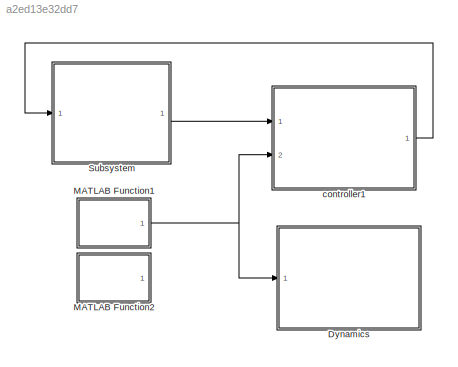
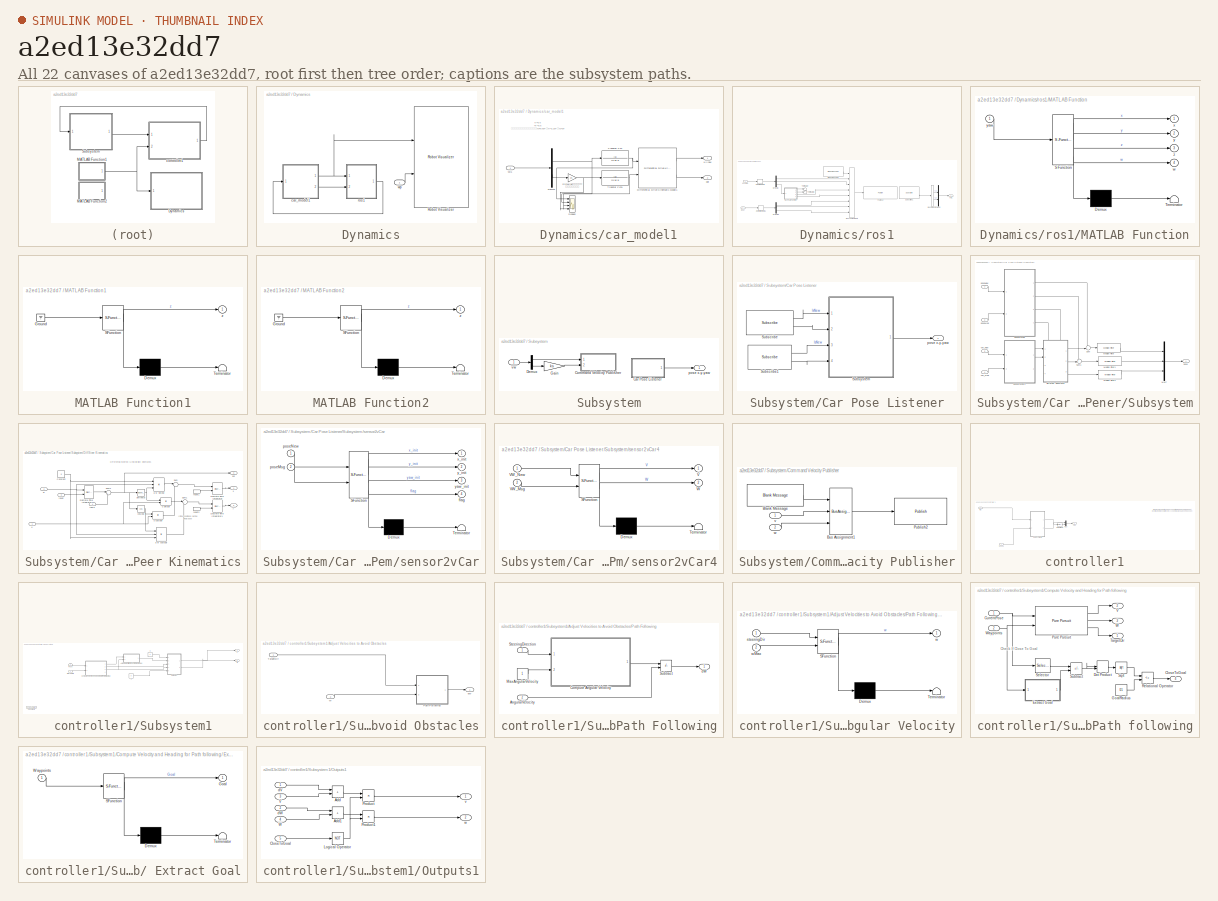
[diagram: thumbnail index - all 22 canvases of the model, root first then tree order]
MODEL slx_a2ed13e32dd7
KIND model
CONFIG AbsTol = auto
CONFIG EnableMultiTasking = on
CONFIG FixedStep = sampleTime
CONFIG InitFcn = sampleTime = 0.05;\nnMedianSize=3;\n% Robot parameters\nwheelRadius = 0.0303; \nrobotRadius = 0.06;   %小车在仿真中显示的圆形的半径大小\nTrackwidth = 0.0847;  %定义向量场直方图算法中小车的宽度\n\n% Lidar parameters\nsensorOffset = [0,0];\nscanAngles = linspace(-pi/3,pi/3,20)';%y = linspace(x1,x2,n) 生成 n 个点。这些点的间距为 (x2-x1)/(n-1)。\nmaxRange = 0.4;\n\n%%%%%%\nks=1;\n\n\n\n\n\nA=0.3;\nC=1.7;\nB=(A+C)/2;\n\nwp1=[A,A; B,A;  C,A; C,B;C,C; B,C; A,C;A,B];    \n...<+638ch>
CONFIG MaxStep = auto
CONFIG MinStep = auto
CONFIG RelTol = 1e-3
CONFIG SampleTimeConstraint = Unconstrained
CONFIG SolverName = VariableStepAuto
CONFIG StartTime = 0.0
CONFIG StopTime = Inf
BLOCK [SubSystem] Dynamics
  Ports = [1]
  RequestExecContextInheritance = off
BLOCK [Reference] Dynamics/Robot Visualizer  REF=mobileRoboticsLib/Environments/Robot Visualizer
  Ports = [2]
  Priority = 99
  SourceBlock = mobileRoboticsLib/Environments/Robot Visualizer
  SourceProductName = Mobile Robotics Simulation Toolbox
  SourceType = Visualizer2D
BLOCK [SubSystem] Dynamics/car_model1
  Ports = [1, 2]
  RequestExecContextInheritance = off
BLOCK [Demux] Dynamics/car_model1/Demux
  Outputs = 2
  Ports = [1, 2]
BLOCK [Reference] Dynamics/car_model1/Differential Drive Kinematic Model1  REF=robotmobilelib/Differential Drive Kinematic Model
  Ports = [2, 2]
  SourceBlock = robotmobilelib/Differential Drive Kinematic Model
  SourceProductBaseCode = RO
  SourceType = Differential Drive Kinematic Model
BLOCK [Scope] Dynamics/car_model1/Scope2
  Floating = off
  NumInputPorts = 4
  Ports = [4]
  ScopeSpecificationString = Simulink.scopes.TimeScopeBlockCfg('CurrentConfiguration', extmgr.ConfigurationSet(extmgr.Configuration('Core','General UI',true),extmgr.Configuration('Core','Source UI',true),extmgr.Configuration('Sources','WiredSimulink',true,'DataLoggingVariableName','ScopeData2'),extmgr.Configuration('Visuals','Time Domain',true,'SerializedDisplays',{struct('MinYLimReal','-1.62445','MaxYLimReal','2.54114','YLab...<+1448ch>
BLOCK [Gain] Dynamics/car_model1/Simulink顺时针为正 小车逆时针为正
  Gain = ks
BLOCK [TransferFcn] Dynamics/car_model1/Transfer Fcn
  Denominator = [0.15 1]
BLOCK [TransferFcn] Dynamics/car_model1/Transfer Fcn1
  Denominator = [0.16 1]
BLOCK [Outport] Dynamics/car_model1/dot
  Port = 2
BLOCK [Inport] Dynamics/car_model1/vw1
BLOCK [Outport] Dynamics/car_model1/x-y-yaw
BLOCK [SubSystem] Dynamics/ros1
  Ports = [2, 1]
  RequestExecContextInheritance = off
BLOCK [Demux] Dynamics/ros1/ [x y theta]
  Outputs = 3
  Ports = [1, 3]
BLOCK [Demux] Dynamics/ros1/ [x y theta]1
  Outputs = 3
  Ports = [1, 3]
BLOCK [Reference] Dynamics/ros1/Blank Message  REF=robotlib/Blank Message
  Ports = [0, 1]
  SourceBlock = robotlib/Blank Message
  SourceProductBaseCode = RR
  SourceType = ROS Blank Message
BLOCK [BusAssignment] Dynamics/ros1/Bus Assignment1
  AssignedSignals = Pose.Pose.Position.X,Pose.Pose.Position.Y,Pose.Pose.Orientation.Z,Pose.Pose.Orientation.W,Twist.Twist.Linear.X,Twist.Twist.Linear.Y,Twist.Twist.Angular.Z
  DialogController = Simulink.DDGSource_BusAssignment
  Ports = [8, 1]
BLOCK [BusSelector] Dynamics/ros1/Bus Selector3
  OutputSignals = Linear.X,Angular.Z
  Ports = [1, 2]
BLOCK [SubSystem] Dynamics/ros1/MATLAB Function
  ErrorFcn = Stateflow.Translate.translate
  PermitHierarchicalResolution = ExplicitOnly
  Ports = [1, 4]
  RequestExecContextInheritance = off
  SFBlockType = MATLAB Function
  TreatAsAtomicUnit = on
BLOCK [Demux] Dynamics/ros1/MATLAB Function/ Demux 
  Outputs = 1
  Ports = [1, 1]
BLOCK [S-Function] Dynamics/ros1/MATLAB Function/ SFunction 
  EnableBusSupport = on
  FunctionName = sf_sfun
  PortCounts = [1 5]
  Ports = [1, 5]
  SFcnIsStateOwnerBlock = off
  SFunctionDeploymentMode = off
  Tag = Stateflow S-Function 20
BLOCK [Terminator] Dynamics/ros1/MATLAB Function/ Terminator 
BLOCK [Outport] Dynamics/ros1/MATLAB Function/w
  Port = 4
BLOCK [Outport] Dynamics/ros1/MATLAB Function/x
BLOCK [Outport] Dynamics/ros1/MATLAB Function/y
  Port = 2
BLOCK [Inport] Dynamics/ros1/MATLAB Function/yaw
BLOCK [Outport] Dynamics/ros1/MATLAB Function/z
  Port = 3
BLOCK [Mux] Dynamics/ros1/Mux5
  DisplayOption = bar
  Inputs = 2
  Ports = [2, 1]
BLOCK [Reference] Dynamics/ros1/Publish2  REF=robotlib/Publish
  AttributesFormatString = %<messageType>
  Ports = [1]
  SourceBlock = robotlib/Publish
  SourceProductBaseCode = RR
  SourceType = ROS Publish
BLOCK [Reference] Dynamics/ros1/Subscribe1  REF=robotlib/Subscribe
  Ports = [0, 2]
  SourceBlock = robotlib/Subscribe
  SourceProductBaseCode = RR
  SourceType = ROS Subscribe
BLOCK [Terminator] Dynamics/ros1/Terminator
BLOCK [Terminator] Dynamics/ros1/Terminator1
BLOCK [ZeroOrderHold] Dynamics/ros1/Zero-Order Hold
  SampleTime = 0.1
BLOCK [ZeroOrderHold] Dynamics/ros1/Zero-Order Hold1
  SampleTime = 0.1
BLOCK [Inport] Dynamics/ros1/do1t
  Port = 2
BLOCK [Outport] Dynamics/ros1/vw1
BLOCK [Inport] Dynamics/ros1/x-y-yaw1
BLOCK [Inport] Dynamics/wp
BLOCK [SubSystem] MATLAB Function1
  ErrorFcn = Stateflow.Translate.translate
  PermitHierarchicalResolution = ExplicitOnly
  Ports = [0, 1]
  RequestExecContextInheritance = off
  SFBlockType = MATLAB Function
  TreatAsAtomicUnit = on
BLOCK [Demux] MATLAB Function1/ Demux 
  Outputs = 1
  Ports = [1, 1]
BLOCK [Ground] MATLAB Function1/ Ground 
BLOCK [S-Function] MATLAB Function1/ SFunction 
  EnableBusSupport = on
  FunctionName = sf_sfun
  PortCounts = [1 2]
  Ports = [1, 2]
  SFcnIsStateOwnerBlock = off
  SFunctionDeploymentMode = off
  Tag = Stateflow S-Function 1
BLOCK [Terminator] MATLAB Function1/ Terminator 
BLOCK [Outport] MATLAB Function1/z
BLOCK [SubSystem] MATLAB Function2
  ErrorFcn = Stateflow.Translate.translate
  PermitHierarchicalResolution = ExplicitOnly
  Ports = [0, 1]
  RequestExecContextInheritance = off
  SFBlockType = MATLAB Function
  TreatAsAtomicUnit = on
BLOCK [Demux] MATLAB Function2/ Demux 
  Outputs = 1
  Ports = [1, 1]
BLOCK [Ground] MATLAB Function2/ Ground 
BLOCK [S-Function] MATLAB Function2/ SFunction 
  EnableBusSupport = on
  FunctionName = sf_sfun
  PortCounts = [1 2]
  Ports = [1, 2]
  SFcnIsStateOwnerBlock = off
  SFunctionDeploymentMode = off
  Tag = Stateflow S-Function 2
BLOCK [Terminator] MATLAB Function2/ Terminator 
BLOCK [Outport] MATLAB Function2/z
BLOCK [SubSystem] Subsystem
  Ports = [1, 1]
  RequestExecContextInheritance = off
BLOCK [SubSystem] Subsystem/Car Pose Listener
  Ports = [0, 1]
  RequestExecContextInheritance = off
BLOCK [Reference] Subsystem/Car Pose Listener/Subscribe  REF=robotlib/Subscribe
  Ports = [0, 2]
  SourceBlock = robotlib/Subscribe
  SourceProductBaseCode = RR
  SourceType = ROS Subscribe
BLOCK [Reference] Subsystem/Car Pose Listener/Subscribe1  REF=robotlib/Subscribe
  Ports = [0, 2]
  SourceBlock = robotlib/Subscribe
  SourceProductBaseCode = RR
  SourceType = ROS Subscribe
BLOCK [SubSystem] Subsystem/Car Pose Listener/Subsystem
  Ports = [4, 1]
  RequestExecContextInheritance = off
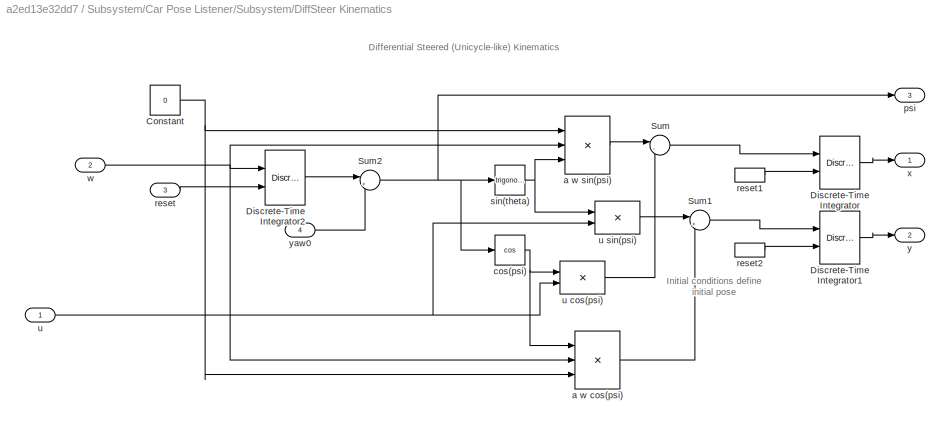
BLOCK [SubSystem] Subsystem/Car Pose Listener/Subsystem/DiffSteer Kinematics
  PortSchema = {"entries":[{"content":{"sides":[{"content":{"connectorIds":["In1","In2"]},"type":"ConnectorPlacement.EquallySpacedRectSide","uuid":"0032ed68-1de4-4b1c-b237-9372fedc8a7a"},{"content":{"connectorIds":["Out1","Out2","Out3"],"side":"RIGHT"},"type":"ConnectorPlacement.EquallySpacedRectSide","uuid":"d0c861bd-7497-47fe-b183-36da470ee2c6"},{"content":{"connectorIds":["In3","In4"],"side":"TOP"},"type":"Co...<+271ch>
  Ports = [4, 3]
  RequestExecContextInheritance = off
BLOCK [Constant] Subsystem/Car Pose Listener/Subsystem/DiffSteer Kinematics/Constant
  Value = 0
BLOCK [DiscreteIntegrator] Subsystem/Car Pose Listener/Subsystem/DiffSteer Kinematics/Discrete-Time Integrator
  ExternalReset = falling
  ICPrevOutput = DiscIntNeverNeededParam
  ICPrevScaledInput = DiscIntNeverNeededParam
  InitialConditionSetting = Auto
  Ports = [2, 1]
  SampleTime = -1
BLOCK [DiscreteIntegrator] Subsystem/Car Pose Listener/Subsystem/DiffSteer Kinematics/Discrete-Time Integrator1
  ExternalReset = falling
  ICPrevOutput = DiscIntNeverNeededParam
  ICPrevScaledInput = DiscIntNeverNeededParam
  InitialConditionSetting = Auto
  Ports = [2, 1]
  SampleTime = -1
BLOCK [DiscreteIntegrator] Subsystem/Car Pose Listener/Subsystem/DiffSteer Kinematics/Discrete-Time Integrator2
  ExternalReset = falling
  ICPrevOutput = DiscIntNeverNeededParam
  ICPrevScaledInput = DiscIntNeverNeededParam
  InitialConditionSetting = Auto
  IntegratorMethod = Integration: Backward Euler
  Ports = [2, 1]
  SampleTime = -1
BLOCK [Sum] Subsystem/Car Pose Listener/Subsystem/DiffSteer Kinematics/Sum
  Inputs = |-+
  Ports = [2, 1]
  SaturateOnIntegerOverflow = on
BLOCK [Sum] Subsystem/Car Pose Listener/Subsystem/DiffSteer Kinematics/Sum1
  Inputs = |++
  Ports = [2, 1]
  SaturateOnIntegerOverflow = on
BLOCK [Sum] Subsystem/Car Pose Listener/Subsystem/DiffSteer Kinematics/Sum2
  Inputs = |++
  Ports = [2, 1]
BLOCK [Product] Subsystem/Car Pose Listener/Subsystem/DiffSteer Kinematics/a w cos(psi)
  Inputs = 3
  OutDataTypeStr = Inherit: Same as first input
  Ports = [3, 1]
  SaturateOnIntegerOverflow = on
BLOCK [Product] Subsystem/Car Pose Listener/Subsystem/DiffSteer Kinematics/a w sin(psi)
  Inputs = 3
  OutDataTypeStr = Inherit: Same as first input
  Ports = [3, 1]
  SaturateOnIntegerOverflow = on
BLOCK [Trigonometry] Subsystem/Car Pose Listener/Subsystem/DiffSteer Kinematics/cos(psi)
  Operator = cos
  Ports = [1, 1]
BLOCK [Outport] Subsystem/Car Pose Listener/Subsystem/DiffSteer Kinematics/psi
  Port = 3
BLOCK [Inport] Subsystem/Car Pose Listener/Subsystem/DiffSteer Kinematics/reset
  Port = 3
BLOCK [InportShadow] Subsystem/Car Pose Listener/Subsystem/DiffSteer Kinematics/reset1
  Port = 3
BLOCK [InportShadow] Subsystem/Car Pose Listener/Subsystem/DiffSteer Kinematics/reset2
  Port = 3
BLOCK [Trigonometry] Subsystem/Car Pose Listener/Subsystem/DiffSteer Kinematics/sin(theta)
  Ports = [1, 1]
BLOCK [Inport] Subsystem/Car Pose Listener/Subsystem/DiffSteer Kinematics/u
BLOCK [Product] Subsystem/Car Pose Listener/Subsystem/DiffSteer Kinematics/u cos(psi)
  OutDataTypeStr = Inherit: Same as first input
  Ports = [2, 1]
  SaturateOnIntegerOverflow = on
BLOCK [Product] Subsystem/Car Pose Listener/Subsystem/DiffSteer Kinematics/u sin(psi)
  OutDataTypeStr = Inherit: Same as first input
  Ports = [2, 1]
  SaturateOnIntegerOverflow = on
BLOCK [Inport] Subsystem/Car Pose Listener/Subsystem/DiffSteer Kinematics/w
  Port = 2
BLOCK [Outport] Subsystem/Car Pose Listener/Subsystem/DiffSteer Kinematics/x
BLOCK [Outport] Subsystem/Car Pose Listener/Subsystem/DiffSteer Kinematics/y
  Port = 2
BLOCK [Inport] Subsystem/Car Pose Listener/Subsystem/DiffSteer Kinematics/yaw0
  Port = 4
BLOCK [Reference] Subsystem/Car Pose Listener/Subsystem/Median Filter  REF=dspstat3/Median
Filter
  Ports = [1, 1]
  SourceBlock = dspstat3/Median\nFilter
  SourceProductBaseCode = DS
  SourceType = dsp.MedianFilter
BLOCK [Reference] Subsystem/Car Pose Listener/Subsystem/Median Filter1  REF=dspstat3/Median
Filter
  Ports = [1, 1]
  SourceBlock = dspstat3/Median\nFilter
  SourceProductBaseCode = DS
  SourceType = dsp.MedianFilter
BLOCK [Reference] Subsystem/Car Pose Listener/Subsystem/Median Filter2  REF=dspstat3/Median
Filter
  Ports = [1, 1]
  SourceBlock = dspstat3/Median\nFilter
  SourceProductBaseCode = DS
  SourceType = dsp.MedianFilter
BLOCK [Mux] Subsystem/Car Pose Listener/Subsystem/Mux7
  DisplayOption = bar
  Inputs = 3
  Ports = [3, 1]
BLOCK [Sum] Subsystem/Car Pose Listener/Subsystem/Sum
  Inputs = ++|
  Ports = [2, 1]
BLOCK [Sum] Subsystem/Car Pose Listener/Subsystem/Sum1
  Inputs = ++|
  Ports = [2, 1]
BLOCK [Inport] Subsystem/Car Pose Listener/Subsystem/VW_Msg
  Port = 4
BLOCK [Inport] Subsystem/Car Pose Listener/Subsystem/VW_New
  Port = 3
BLOCK [Outport] Subsystem/Car Pose Listener/Subsystem/pose
BLOCK [Inport] Subsystem/Car Pose Listener/Subsystem/poseMsg
  Port = 2
BLOCK [Inport] Subsystem/Car Pose Listener/Subsystem/poseNew
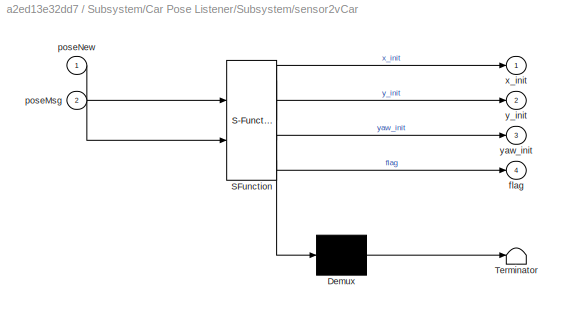
BLOCK [SubSystem] Subsystem/Car Pose Listener/Subsystem/sensor2vCar
  ErrorFcn = Stateflow.Translate.translate
  PermitHierarchicalResolution = ExplicitOnly
  Ports = [2, 4]
  RequestExecContextInheritance = off
  SFBlockType = MATLAB Function
  TreatAsAtomicUnit = on
BLOCK [Demux] Subsystem/Car Pose Listener/Subsystem/sensor2vCar/ Demux 
  Outputs = 1
  Ports = [1, 1]
BLOCK [S-Function] Subsystem/Car Pose Listener/Subsystem/sensor2vCar/ SFunction 
  EnableBusSupport = on
  FunctionName = sf_sfun
  PortCounts = [2 5]
  Ports = [2, 5]
  SFcnIsStateOwnerBlock = off
  SFunctionDeploymentMode = off
  Tag = Stateflow S-Function 12
BLOCK [Terminator] Subsystem/Car Pose Listener/Subsystem/sensor2vCar/ Terminator 
BLOCK [Outport] Subsystem/Car Pose Listener/Subsystem/sensor2vCar/flag
  Port = 4
BLOCK [Inport] Subsystem/Car Pose Listener/Subsystem/sensor2vCar/poseMsg
  Port = 2
BLOCK [Inport] Subsystem/Car Pose Listener/Subsystem/sensor2vCar/poseNew
BLOCK [Outport] Subsystem/Car Pose Listener/Subsystem/sensor2vCar/x_init
BLOCK [Outport] Subsystem/Car Pose Listener/Subsystem/sensor2vCar/y_init
  Port = 2
BLOCK [Outport] Subsystem/Car Pose Listener/Subsystem/sensor2vCar/yaw_init
  Port = 3
BLOCK [SubSystem] Subsystem/Car Pose Listener/Subsystem/sensor2vCar4
  ErrorFcn = Stateflow.Translate.translate
  PermitHierarchicalResolution = ExplicitOnly
  Ports = [2, 2]
  RequestExecContextInheritance = off
  SFBlockType = MATLAB Function
  TreatAsAtomicUnit = on
BLOCK [Demux] Subsystem/Car Pose Listener/Subsystem/sensor2vCar4/ Demux 
  Outputs = 1
  Ports = [1, 1]
BLOCK [S-Function] Subsystem/Car Pose Listener/Subsystem/sensor2vCar4/ SFunction 
  EnableBusSupport = on
  FunctionName = sf_sfun
  PortCounts = [2 3]
  Ports = [2, 3]
  SFcnIsStateOwnerBlock = off
  SFunctionDeploymentMode = off
  Tag = Stateflow S-Function 13
BLOCK [Terminator] Subsystem/Car Pose Listener/Subsystem/sensor2vCar4/ Terminator 
BLOCK [Outport] Subsystem/Car Pose Listener/Subsystem/sensor2vCar4/V
BLOCK [Inport] Subsystem/Car Pose Listener/Subsystem/sensor2vCar4/VW_Msg
  Port = 2
BLOCK [Inport] Subsystem/Car Pose Listener/Subsystem/sensor2vCar4/VW_New
BLOCK [Outport] Subsystem/Car Pose Listener/Subsystem/sensor2vCar4/W
  Port = 2
BLOCK [Outport] Subsystem/Car Pose Listener/pose x-y-yaw
BLOCK [SubSystem] Subsystem/Command Velocity Publisher
  Ports = [2]
  RequestExecContextInheritance = off
BLOCK [Reference] Subsystem/Command Velocity Publisher/Blank Message  REF=robotlib/Blank Message
  Ports = [0, 1]
  SourceBlock = robotlib/Blank Message
  SourceProductBaseCode = RR
  SourceType = ROS Blank Message
BLOCK [BusAssignment] Subsystem/Command Velocity Publisher/Bus Assignment1
  AssignedSignals = Linear.X,Angular.Z
  DialogController = Simulink.DDGSource_BusAssignment
  Ports = [3, 1]
BLOCK [Reference] Subsystem/Command Velocity Publisher/Publish2  REF=robotlib/Publish
  AttributesFormatString = %<messageType>
  Ports = [1]
  SourceBlock = robotlib/Publish
  SourceProductBaseCode = RR
  SourceType = ROS Publish
BLOCK [Inport] Subsystem/Command Velocity Publisher/v
BLOCK [Inport] Subsystem/Command Velocity Publisher/w
  Port = 2
BLOCK [Demux] Subsystem/Demux
  Outputs = 2
  Ports = [1, 2]
BLOCK [Gain] Subsystem/Gain
  Gain = ks
BLOCK [Outport] Subsystem/pose x-y-yaw
BLOCK [Inport] Subsystem/vw
BLOCK [SubSystem] controller1
  Ports = [2, 1]
  RequestExecContextInheritance = off
BLOCK [Reference] controller1/Gain (Slider)  REF=simulink/Math
Operations/Slider
Gain
  Ports = [1, 1]
  SourceBlock = simulink/Math\nOperations/Slider\nGain
  SourceProductBaseCode = SL
  SourceType = Slider Gain
BLOCK [Mux] controller1/Mux
  DisplayOption = bar
  Inputs = 2
  Ports = [2, 1]
BLOCK [SubSystem] controller1/Subsystem1
  Ports = [2, 2]
  RequestExecContextInheritance = off
BLOCK [Constant] controller1/Subsystem1/0
  Value = 0
BLOCK [Constant] controller1/Subsystem1/1
  Value = 0
BLOCK [SubSystem] controller1/Subsystem1/Adjust Velocities to Avoid Obstacles
  Ports = [2, 1]
  RequestExecContextInheritance = off
BLOCK [SubSystem] controller1/Subsystem1/Adjust Velocities to Avoid Obstacles/Path Following
  Ports = [2, 1]
  RequestExecContextInheritance = off
  TreatAsAtomicUnit = on
BLOCK [Inport] controller1/Subsystem1/Adjust Velocities to Avoid Obstacles/Path Following/AngularVelocity
  Port = 2
BLOCK [SubSystem] controller1/Subsystem1/Adjust Velocities to Avoid Obstacles/Path Following/Compute Angular Velocity
  ErrorFcn = Stateflow.Translate.translate
  PermitHierarchicalResolution = ExplicitOnly
  Ports = [2, 1]
  RequestExecContextInheritance = off
  SFBlockType = MATLAB Function
  TreatAsAtomicUnit = on
BLOCK [Demux] controller1/Subsystem1/Adjust Velocities to Avoid Obstacles/Path Following/Compute Angular Velocity/ Demux 
  Outputs = 1
  Ports = [1, 1]
BLOCK [S-Function] controller1/Subsystem1/Adjust Velocities to Avoid Obstacles/Path Following/Compute Angular Velocity/ SFunction 
  EnableBusSupport = on
  FunctionName = sf_sfun
  PortCounts = [2 2]
  Ports = [2, 2]
  SFcnIsStateOwnerBlock = off
  SFunctionDeploymentMode = off
  Tag = Stateflow S-Function 6
BLOCK [Terminator] controller1/Subsystem1/Adjust Velocities to Avoid Obstacles/Path Following/Compute Angular Velocity/ Terminator 
BLOCK [Inport] controller1/Subsystem1/Adjust Velocities to Avoid Obstacles/Path Following/Compute Angular Velocity/steeringDir
BLOCK [Outport] controller1/Subsystem1/Adjust Velocities to Avoid Obstacles/Path Following/Compute Angular Velocity/w
  VectorParamsAs1DForOutWhenUnconnected = off
BLOCK [Inport] controller1/Subsystem1/Adjust Velocities to Avoid Obstacles/Path Following/Compute Angular Velocity/wMax
  Port = 2
BLOCK [Constant] controller1/Subsystem1/Adjust Velocities to Avoid Obstacles/Path Following/MaxAngularVelocity
BLOCK [Inport] controller1/Subsystem1/Adjust Velocities to Avoid Obstacles/Path Following/SteeringDirection
BLOCK [Sum] controller1/Subsystem1/Adjust Velocities to Avoid Obstacles/Path Following/Subtract
  IconShape = rectangular
  Inputs = +-
  Ports = [2, 1]
BLOCK [Outport] controller1/Subsystem1/Adjust Velocities to Avoid Obstacles/Path Following/dW
  VectorParamsAs1DForOutWhenUnconnected = off
BLOCK [Inport] controller1/Subsystem1/Adjust Velocities to Avoid Obstacles/TargetDir
BLOCK [Inport] controller1/Subsystem1/Adjust Velocities to Avoid Obstacles/W
  Port = 2
BLOCK [Outport] controller1/Subsystem1/Adjust Velocities to Avoid Obstacles/dW
  VectorParamsAs1DForOutWhenUnconnected = off
BLOCK [SubSystem] controller1/Subsystem1/Compute Velocity and Heading for Path following
  Ports = [2, 4]
  RequestExecContextInheritance = off
BLOCK [SubSystem] controller1/Subsystem1/Compute Velocity and Heading for Path following/ Extract Goal
  ErrorFcn = Stateflow.Translate.translate
  PermitHierarchicalResolution = ExplicitOnly
  Ports = [1, 1]
  RequestExecContextInheritance = off
  SFBlockType = MATLAB Function
  TreatAsAtomicUnit = on
BLOCK [Demux] controller1/Subsystem1/Compute Velocity and Heading for Path following/ Extract Goal/ Demux 
  Outputs = 1
  Ports = [1, 1]
BLOCK [S-Function] controller1/Subsystem1/Compute Velocity and Heading for Path following/ Extract Goal/ SFunction 
  EnableBusSupport = on
  FunctionName = sf_sfun
  PortCounts = [1 2]
  Ports = [1, 2]
  SFcnIsStateOwnerBlock = off
  SFunctionDeploymentMode = off
  Tag = Stateflow S-Function 7
BLOCK [Terminator] controller1/Subsystem1/Compute Velocity and Heading for Path following/ Extract Goal/ Terminator 
BLOCK [Outport] controller1/Subsystem1/Compute Velocity and Heading for Path following/ Extract Goal/Goal
  VectorParamsAs1DForOutWhenUnconnected = off
BLOCK [Inport] controller1/Subsystem1/Compute Velocity and Heading for Path following/ Extract Goal/Waypoints
BLOCK [Outport] controller1/Subsystem1/Compute Velocity and Heading for Path following/CloseToGoal
  Port = 4
  VectorParamsAs1DForOutWhenUnconnected = off
BLOCK [Inport] controller1/Subsystem1/Compute Velocity and Heading for Path following/CurrentPose
BLOCK [DotProduct] controller1/Subsystem1/Compute Velocity and Heading for Path following/Dot Product
  OutDataTypeStr = Inherit: Inherit via internal rule
BLOCK [Constant] controller1/Subsystem1/Compute Velocity and Heading for Path following/GoalRadius
  Value = 0.1
BLOCK [Reference] controller1/Subsystem1/Compute Velocity and Heading for Path following/Pure Pursuit  REF=robotalgslib/Pure Pursuit
  Ports = [2, 3]
  SourceBlock = robotalgslib/Pure Pursuit
  SourceProductBaseCode = NV,RO
  SourceType = nav.slalgs.internal.PurePursuit
BLOCK [RelationalOperator] controller1/Subsystem1/Compute Velocity and Heading for Path following/Relational Operator
  InputSameDT = off
  Operator = <=
  OutDataTypeStr = boolean
  Ports = [2, 1]
  RndMeth = Simplest
BLOCK [Selector] controller1/Subsystem1/Compute Velocity and Heading for Path following/Selector
  IndexOptions = Index vector (dialog)
  Indices = [1 2]
  InputPortWidth = 3
  OutputSizes = 1
  Ports = [1, 1]
BLOCK [Sqrt] controller1/Subsystem1/Compute Velocity and Heading for Path following/Sqrt
BLOCK [Sum] controller1/Subsystem1/Compute Velocity and Heading for Path following/Subtract
  IconShape = rectangular
  Inputs = +-
  Ports = [2, 1]
BLOCK [Outport] controller1/Subsystem1/Compute Velocity and Heading for Path following/TargetDir
  VectorParamsAs1DForOutWhenUnconnected = off
BLOCK [Outport] controller1/Subsystem1/Compute Velocity and Heading for Path following/V
  Port = 2
  VectorParamsAs1DForOutWhenUnconnected = off
BLOCK [Outport] controller1/Subsystem1/Compute Velocity and Heading for Path following/W
  Port = 3
  VectorParamsAs1DForOutWhenUnconnected = off
BLOCK [Inport] controller1/Subsystem1/Compute Velocity and Heading for Path following/Waypoints
  Port = 2
BLOCK [Constant] controller1/Subsystem1/Constant1
  Value = scanAngles
BLOCK [SubSystem] controller1/Subsystem1/Outputs1
  Ports = [5, 2]
  RequestExecContextInheritance = off
BLOCK [Sum] controller1/Subsystem1/Outputs1/Add
  IconShape = rectangular
  Ports = [2, 1]
BLOCK [Sum] controller1/Subsystem1/Outputs1/Add1
  IconShape = rectangular
  Ports = [2, 1]
BLOCK [Inport] controller1/Subsystem1/Outputs1/CloseToGoal
  Port = 5
BLOCK [Logic] controller1/Subsystem1/Outputs1/Logical Operator
  AllPortsSameDT = off
  Operator = NOT
  OutDataTypeStr = boolean
  Ports = [1, 1]
BLOCK [Product] controller1/Subsystem1/Outputs1/Product
  Ports = [2, 1]
BLOCK [Product] controller1/Subsystem1/Outputs1/Product1
  Ports = [2, 1]
BLOCK [Inport] controller1/Subsystem1/Outputs1/V
  Port = 3
BLOCK [Inport] controller1/Subsystem1/Outputs1/W
  Port = 4
BLOCK [Inport] controller1/Subsystem1/Outputs1/dV
BLOCK [Inport] controller1/Subsystem1/Outputs1/dW
  Port = 2
BLOCK [Outport] controller1/Subsystem1/Outputs1/v
BLOCK [Outport] controller1/Subsystem1/Outputs1/w
  Port = 2
BLOCK [Inport] controller1/Subsystem1/Pose
  Port = 2
BLOCK [Inport] controller1/Subsystem1/WayPoints
BLOCK [Outport] controller1/Subsystem1/v
BLOCK [Outport] controller1/Subsystem1/w
  Port = 2
BLOCK [Inport] controller1/pose1
BLOCK [Outport] controller1/vw1
BLOCK [Inport] controller1/wp
  Port = 2
ANNOTATION Dynamics/car_model1: tr=0.6 4T=0.6 一阶系统的动态性能指标为：td=0.69T，tr=2.20T，ts=3T
ANNOTATION Subsystem/Car Pose Listener/Subsystem/DiffSteer Kinematics: Differential Steered (Unicycle-like) Kinematics
ANNOTATION Subsystem/Car Pose Listener/Subsystem/DiffSteer Kinematics: Initial conditions define initial pose
ANNOTATION controller1: Misaro Pure Pursuit Feedback Control of a ROS-enabled Robot (Configured for generation of C++ code for a standalone ROS node)
ANNOTATION controller1/Subsystem1/Compute Velocity and Heading for Path following: Check If Close To Goal
NET Dynamics/car_model1/Demux:1 -> Dynamics/car_model1/Scope2:3, Dynamics/car_model1/Transfer Fcn:1
LINE Dynamics/car_model1/Demux:2 -> Dynamics/car_model1/Simulink顺时针为正 小车逆时针为正:1
LINE Dynamics/car_model1/Differential Drive Kinematic Model1:1 -> Dynamics/car_model1/x-y-yaw:1
LINE Dynamics/car_model1/Differential Drive Kinematic Model1:2 -> Dynamics/car_model1/dot:1
NET Dynamics/car_model1/Simulink顺时针为正 小车逆时针为正:1 -> Dynamics/car_model1/Scope2:4, Dynamics/car_model1/Transfer Fcn1:1
NET Dynamics/car_model1/Transfer Fcn1:1 -> Dynamics/car_model1/Differential Drive Kinematic Model1:2, Dynamics/car_model1/Scope2:2
NET Dynamics/car_model1/Transfer Fcn:1 -> Dynamics/car_model1/Differential Drive Kinematic Model1:1, Dynamics/car_model1/Scope2:1
LINE Dynamics/car_model1/vw1:1 -> Dynamics/car_model1/Demux:1
NET Dynamics/car_model1:1 -> Dynamics/Robot Visualizer:1, Dynamics/ros1:1
LINE Dynamics/car_model1:2 -> Dynamics/ros1:2
LINE Dynamics/ros1/ [x y theta]1:1 -> Dynamics/ros1/Bus Assignment1:6
LINE Dynamics/ros1/ [x y theta]1:2 -> Dynamics/ros1/Bus Assignment1:7
LINE Dynamics/ros1/ [x y theta]1:3 -> Dynamics/ros1/Bus Assignment1:8
LINE Dynamics/ros1/ [x y theta]:1 -> Dynamics/ros1/Bus Assignment1:2
LINE Dynamics/ros1/ [x y theta]:2 -> Dynamics/ros1/Bus Assignment1:3
LINE Dynamics/ros1/ [x y theta]:3 -> Dynamics/ros1/MATLAB Function:1
LINE Dynamics/ros1/Blank Message:1 -> Dynamics/ros1/Bus Assignment1:1
LINE Dynamics/ros1/Bus Assignment1:1 -> Dynamics/ros1/Publish2:1
LINE Dynamics/ros1/Bus Selector3:1 -> Dynamics/ros1/Mux5:1
LINE Dynamics/ros1/Bus Selector3:2 -> Dynamics/ros1/Mux5:2
LINE Dynamics/ros1/MATLAB Function:1 -> Dynamics/ros1/Terminator:1
LINE Dynamics/ros1/MATLAB Function:2 -> Dynamics/ros1/Terminator1:1
LINE Dynamics/ros1/MATLAB Function:3 -> Dynamics/ros1/Bus Assignment1:4
LINE Dynamics/ros1/MATLAB Function:4 -> Dynamics/ros1/Bus Assignment1:5
LINE Dynamics/ros1/Mux5:1 -> Dynamics/ros1/vw1:1
LINE Dynamics/ros1/Subscribe1:2 -> Dynamics/ros1/Bus Selector3:1
LINE Dynamics/ros1/Zero-Order Hold1:1 -> Dynamics/ros1/ [x y theta]1:1
LINE Dynamics/ros1/Zero-Order Hold:1 -> Dynamics/ros1/ [x y theta]:1
LINE Dynamics/ros1/do1t:1 -> Dynamics/ros1/Zero-Order Hold1:1
LINE Dynamics/ros1/x-y-yaw1:1 -> Dynamics/ros1/Zero-Order Hold:1
LINE Dynamics/ros1:1 -> Dynamics/car_model1:1
LINE Dynamics/wp:1 -> Dynamics/Robot Visualizer:2
NET MATLAB Function1:1 -> Dynamics:1, controller1:2
LINE Subsystem/Car Pose Listener/Subscribe1:1 -> Subsystem/Car Pose Listener/Subsystem:3
LINE Subsystem/Car Pose Listener/Subscribe1:2 -> Subsystem/Car Pose Listener/Subsystem:4
LINE Subsystem/Car Pose Listener/Subscribe:1 -> Subsystem/Car Pose Listener/Subsystem:1
LINE Subsystem/Car Pose Listener/Subscribe:2 -> Subsystem/Car Pose Listener/Subsystem:2
NET Subsystem/Car Pose Listener/Subsystem/DiffSteer Kinematics/Constant:1 -> Subsystem/Car Pose Listener/Subsystem/DiffSteer Kinematics/a w cos(psi):3, Subsystem/Car Pose Listener/Subsystem/DiffSteer Kinematics/a w sin(psi):1
LINE Subsystem/Car Pose Listener/Subsystem/DiffSteer Kinematics/Discrete-Time Integrator1:1 -> Subsystem/Car Pose Listener/Subsystem/DiffSteer Kinematics/y:1
LINE Subsystem/Car Pose Listener/Subsystem/DiffSteer Kinematics/Discrete-Time Integrator2:1 -> Subsystem/Car Pose Listener/Subsystem/DiffSteer Kinematics/Sum2:1
LINE Subsystem/Car Pose Listener/Subsystem/DiffSteer Kinematics/Discrete-Time Integrator:1 -> Subsystem/Car Pose Listener/Subsystem/DiffSteer Kinematics/x:1
LINE Subsystem/Car Pose Listener/Subsystem/DiffSteer Kinematics/Sum1:1 -> Subsystem/Car Pose Listener/Subsystem/DiffSteer Kinematics/Discrete-Time Integrator1:1
NET Subsystem/Car Pose Listener/Subsystem/DiffSteer Kinematics/Sum2:1 -> Subsystem/Car Pose Listener/Subsystem/DiffSteer Kinematics/cos(psi):1, Subsystem/Car Pose Listener/Subsystem/DiffSteer Kinematics/psi:1, Subsystem/Car Pose Listener/Subsystem/DiffSteer Kinematics/sin(theta):1
LINE Subsystem/Car Pose Listener/Subsystem/DiffSteer Kinematics/Sum:1 -> Subsystem/Car Pose Listener/Subsystem/DiffSteer Kinematics/Discrete-Time Integrator:1
LINE Subsystem/Car Pose Listener/Subsystem/DiffSteer Kinematics/a w cos(psi):1 -> Subsystem/Car Pose Listener/Subsystem/DiffSteer Kinematics/Sum1:2
LINE Subsystem/Car Pose Listener/Subsystem/DiffSteer Kinematics/a w sin(psi):1 -> Subsystem/Car Pose Listener/Subsystem/DiffSteer Kinematics/Sum:1
NET Subsystem/Car Pose Listener/Subsystem/DiffSteer Kinematics/cos(psi):1 -> Subsystem/Car Pose Listener/Subsystem/DiffSteer Kinematics/a w cos(psi):1, Subsystem/Car Pose Listener/Subsystem/DiffSteer Kinematics/u cos(psi):1
LINE Subsystem/Car Pose Listener/Subsystem/DiffSteer Kinematics/reset1:1 -> Subsystem/Car Pose Listener/Subsystem/DiffSteer Kinematics/Discrete-Time Integrator:2
LINE Subsystem/Car Pose Listener/Subsystem/DiffSteer Kinematics/reset2:1 -> Subsystem/Car Pose Listener/Subsystem/DiffSteer Kinematics/Discrete-Time Integrator1:2
LINE Subsystem/Car Pose Listener/Subsystem/DiffSteer Kinematics/reset:1 -> Subsystem/Car Pose Listener/Subsystem/DiffSteer Kinematics/Discrete-Time Integrator2:2
NET Subsystem/Car Pose Listener/Subsystem/DiffSteer Kinematics/sin(theta):1 -> Subsystem/Car Pose Listener/Subsystem/DiffSteer Kinematics/a w sin(psi):3, Subsystem/Car Pose Listener/Subsystem/DiffSteer Kinematics/u sin(psi):1
LINE Subsystem/Car Pose Listener/Subsystem/DiffSteer Kinematics/u cos(psi):1 -> Subsystem/Car Pose Listener/Subsystem/DiffSteer Kinematics/Sum:2
LINE Subsystem/Car Pose Listener/Subsystem/DiffSteer Kinematics/u sin(psi):1 -> Subsystem/Car Pose Listener/Subsystem/DiffSteer Kinematics/Sum1:1
NET Subsystem/Car Pose Listener/Subsystem/DiffSteer Kinematics/u:1 -> Subsystem/Car Pose Listener/Subsystem/DiffSteer Kinematics/u cos(psi):2, Subsystem/Car Pose Listener/Subsystem/DiffSteer Kinematics/u sin(psi):2
NET Subsystem/Car Pose Listener/Subsystem/DiffSteer Kinematics/w:1 -> Subsystem/Car Pose Listener/Subsystem/DiffSteer Kinematics/Discrete-Time Integrator2:1, Subsystem/Car Pose Listener/Subsystem/DiffSteer Kinematics/a w cos(psi):2, Subsystem/Car Pose Listener/Subsystem/DiffSteer Kinematics/a w sin(psi):2
LINE Subsystem/Car Pose Listener/Subsystem/DiffSteer Kinematics/yaw0:1 -> Subsystem/Car Pose Listener/Subsystem/DiffSteer Kinematics/Sum2:2
LINE Subsystem/Car Pose Listener/Subsystem/DiffSteer Kinematics:1 -> Subsystem/Car Pose Listener/Subsystem/Sum:2
LINE Subsystem/Car Pose Listener/Subsystem/DiffSteer Kinematics:2 -> Subsystem/Car Pose Listener/Subsystem/Sum1:2
LINE Subsystem/Car Pose Listener/Subsystem/DiffSteer Kinematics:3 -> Subsystem/Car Pose Listener/Subsystem/Median Filter2:1
LINE Subsystem/Car Pose Listener/Subsystem/Median Filter1:1 -> Subsystem/Car Pose Listener/Subsystem/Mux7:2
LINE Subsystem/Car Pose Listener/Subsystem/Median Filter2:1 -> Subsystem/Car Pose Listener/Subsystem/Mux7:3
LINE Subsystem/Car Pose Listener/Subsystem/Median Filter:1 -> Subsystem/Car Pose Listener/Subsystem/Mux7:1
LINE Subsystem/Car Pose Listener/Subsystem/Mux7:1 -> Subsystem/Car Pose Listener/Subsystem/pose:1
LINE Subsystem/Car Pose Listener/Subsystem/Sum1:1 -> Subsystem/Car Pose Listener/Subsystem/Median Filter1:1
LINE Subsystem/Car Pose Listener/Subsystem/Sum:1 -> Subsystem/Car Pose Listener/Subsystem/Median Filter:1
LINE Subsystem/Car Pose Listener/Subsystem/VW_Msg:1 -> Subsystem/Car Pose Listener/Subsystem/sensor2vCar4:2
LINE Subsystem/Car Pose Listener/Subsystem/VW_New:1 -> Subsystem/Car Pose Listener/Subsystem/sensor2vCar4:1
LINE Subsystem/Car Pose Listener/Subsystem/poseMsg:1 -> Subsystem/Car Pose Listener/Subsystem/sensor2vCar:2
LINE Subsystem/Car Pose Listener/Subsystem/poseNew:1 -> Subsystem/Car Pose Listener/Subsystem/sensor2vCar:1
LINE Subsystem/Car Pose Listener/Subsystem/sensor2vCar4:1 -> Subsystem/Car Pose Listener/Subsystem/DiffSteer Kinematics:1
LINE Subsystem/Car Pose Listener/Subsystem/sensor2vCar4:2 -> Subsystem/Car Pose Listener/Subsystem/DiffSteer Kinematics:2
LINE Subsystem/Car Pose Listener/Subsystem/sensor2vCar:1 -> Subsystem/Car Pose Listener/Subsystem/Sum:1
LINE Subsystem/Car Pose Listener/Subsystem/sensor2vCar:2 -> Subsystem/Car Pose Listener/Subsystem/Sum1:1
LINE Subsystem/Car Pose Listener/Subsystem/sensor2vCar:3 -> Subsystem/Car Pose Listener/Subsystem/DiffSteer Kinematics:4
LINE Subsystem/Car Pose Listener/Subsystem/sensor2vCar:4 -> Subsystem/Car Pose Listener/Subsystem/DiffSteer Kinematics:3
LINE Subsystem/Car Pose Listener/Subsystem:1 -> Subsystem/Car Pose Listener/pose x-y-yaw:1
LINE Subsystem/Car Pose Listener:1 -> Subsystem/pose x-y-yaw:1
LINE Subsystem/Command Velocity Publisher/Blank Message:1 -> Subsystem/Command Velocity Publisher/Bus Assignment1:1
LINE Subsystem/Command Velocity Publisher/Bus Assignment1:1 -> Subsystem/Command Velocity Publisher/Publish2:1
LINE Subsystem/Command Velocity Publisher/v:1 -> Subsystem/Command Velocity Publisher/Bus Assignment1:2
LINE Subsystem/Command Velocity Publisher/w:1 -> Subsystem/Command Velocity Publisher/Bus Assignment1:3
LINE Subsystem/Demux:1 -> Subsystem/Command Velocity Publisher:1
LINE Subsystem/Demux:2 -> Subsystem/Gain:1
LINE Subsystem/Gain:1 -> Subsystem/Command Velocity Publisher:2
LINE Subsystem/vw:1 -> Subsystem/Demux:1
LINE Subsystem:1 -> controller1:1
LINE controller1/Gain (Slider):1 -> controller1/Mux:2
LINE controller1/Mux:1 -> controller1/vw1:1
LINE controller1/Subsystem1/0:1 -> controller1/Subsystem1/Outputs1:1
LINE controller1/Subsystem1/1:1 -> controller1/Subsystem1/Outputs1:5
LINE controller1/Subsystem1/Adjust Velocities to Avoid Obstacles/Path Following/AngularVelocity:1 -> controller1/Subsystem1/Adjust Velocities to Avoid Obstacles/Path Following/Subtract:2
LINE controller1/Subsystem1/Adjust Velocities to Avoid Obstacles/Path Following/Compute Angular Velocity:1 -> controller1/Subsystem1/Adjust Velocities to Avoid Obstacles/Path Following/Subtract:1
LINE controller1/Subsystem1/Adjust Velocities to Avoid Obstacles/Path Following/MaxAngularVelocity:1 -> controller1/Subsystem1/Adjust Velocities to Avoid Obstacles/Path Following/Compute Angular Velocity:2
LINE controller1/Subsystem1/Adjust Velocities to Avoid Obstacles/Path Following/SteeringDirection:1 -> controller1/Subsystem1/Adjust Velocities to Avoid Obstacles/Path Following/Compute Angular Velocity:1
LINE controller1/Subsystem1/Adjust Velocities to Avoid Obstacles/Path Following/Subtract:1 -> controller1/Subsystem1/Adjust Velocities to Avoid Obstacles/Path Following/dW:1
LINE controller1/Subsystem1/Adjust Velocities to Avoid Obstacles/Path Following:1 -> controller1/Subsystem1/Adjust Velocities to Avoid Obstacles/dW:1
LINE controller1/Subsystem1/Adjust Velocities to Avoid Obstacles/TargetDir:1 -> controller1/Subsystem1/Adjust Velocities to Avoid Obstacles/Path Following:1
LINE controller1/Subsystem1/Adjust Velocities to Avoid Obstacles/W:1 -> controller1/Subsystem1/Adjust Velocities to Avoid Obstacles/Path Following:2
LINE controller1/Subsystem1/Adjust Velocities to Avoid Obstacles:1 -> controller1/Subsystem1/Outputs1:2
LINE controller1/Subsystem1/Compute Velocity and Heading for Path following/ Extract Goal:1 -> controller1/Subsystem1/Compute Velocity and Heading for Path following/Subtract:2
NET controller1/Subsystem1/Compute Velocity and Heading for Path following/CurrentPose:1 -> controller1/Subsystem1/Compute Velocity and Heading for Path following/Pure Pursuit:1, controller1/Subsystem1/Compute Velocity and Heading for Path following/Selector:1
LINE controller1/Subsystem1/Compute Velocity and Heading for Path following/Dot Product:1 -> controller1/Subsystem1/Compute Velocity and Heading for Path following/Sqrt:1
LINE controller1/Subsystem1/Compute Velocity and Heading for Path following/GoalRadius:1 -> controller1/Subsystem1/Compute Velocity and Heading for Path following/Relational Operator:2
LINE controller1/Subsystem1/Compute Velocity and Heading for Path following/Pure Pursuit:1 -> controller1/Subsystem1/Compute Velocity and Heading for Path following/V:1
LINE controller1/Subsystem1/Compute Velocity and Heading for Path following/Pure Pursuit:2 -> controller1/Subsystem1/Compute Velocity and Heading for Path following/W:1
LINE controller1/Subsystem1/Compute Velocity and Heading for Path following/Pure Pursuit:3 -> controller1/Subsystem1/Compute Velocity and Heading for Path following/TargetDir:1
LINE controller1/Subsystem1/Compute Velocity and Heading for Path following/Relational Operator:1 -> controller1/Subsystem1/Compute Velocity and Heading for Path following/CloseToGoal:1
LINE controller1/Subsystem1/Compute Velocity and Heading for Path following/Selector:1 -> controller1/Subsystem1/Compute Velocity and Heading for Path following/Subtract:1
LINE controller1/Subsystem1/Compute Velocity and Heading for Path following/Sqrt:1 -> controller1/Subsystem1/Compute Velocity and Heading for Path following/Relational Operator:1
NET controller1/Subsystem1/Compute Velocity and Heading for Path following/Subtract:1 -> controller1/Subsystem1/Compute Velocity and Heading for Path following/Dot Product:1, controller1/Subsystem1/Compute Velocity and Heading for Path following/Dot Product:2
NET controller1/Subsystem1/Compute Velocity and Heading for Path following/Waypoints:1 -> controller1/Subsystem1/Compute Velocity and Heading for Path following/ Extract Goal:1, controller1/Subsystem1/Compute Velocity and Heading for Path following/Pure Pursuit:2
LINE controller1/Subsystem1/Compute Velocity and Heading for Path following:1 -> controller1/Subsystem1/Adjust Velocities to Avoid Obstacles:1
LINE controller1/Subsystem1/Compute Velocity and Heading for Path following:2 -> controller1/Subsystem1/Outputs1:3
NET controller1/Subsystem1/Compute Velocity and Heading for Path following:3 -> controller1/Subsystem1/Adjust Velocities to Avoid Obstacles:2, controller1/Subsystem1/Outputs1:4
LINE controller1/Subsystem1/Outputs1/Add1:1 -> controller1/Subsystem1/Outputs1/Product1:1
LINE controller1/Subsystem1/Outputs1/Add:1 -> controller1/Subsystem1/Outputs1/Product:1
LINE controller1/Subsystem1/Outputs1/CloseToGoal:1 -> controller1/Subsystem1/Outputs1/Logical Operator:1
NET controller1/Subsystem1/Outputs1/Logical Operator:1 -> controller1/Subsystem1/Outputs1/Product1:2, controller1/Subsystem1/Outputs1/Product:2
LINE controller1/Subsystem1/Outputs1/Product1:1 -> controller1/Subsystem1/Outputs1/w:1
LINE controller1/Subsystem1/Outputs1/Product:1 -> controller1/Subsystem1/Outputs1/v:1
LINE controller1/Subsystem1/Outputs1/V:1 -> controller1/Subsystem1/Outputs1/Add:2
LINE controller1/Subsystem1/Outputs1/W:1 -> controller1/Subsystem1/Outputs1/Add1:2
LINE controller1/Subsystem1/Outputs1/dV:1 -> controller1/Subsystem1/Outputs1/Add:1
LINE controller1/Subsystem1/Outputs1/dW:1 -> controller1/Subsystem1/Outputs1/Add1:1
LINE controller1/Subsystem1/Outputs1:1 -> controller1/Subsystem1/v:1
LINE controller1/Subsystem1/Outputs1:2 -> controller1/Subsystem1/w:1
LINE controller1/Subsystem1/Pose:1 -> controller1/Subsystem1/Compute Velocity and Heading for Path following:1
LINE controller1/Subsystem1/WayPoints:1 -> controller1/Subsystem1/Compute Velocity and Heading for Path following:2
LINE controller1/Subsystem1:1 -> controller1/Mux:1
LINE controller1/Subsystem1:2 -> controller1/Gain (Slider):1
LINE controller1/pose1:1 -> controller1/Subsystem1:2
LINE controller1/wp:1 -> controller1/Subsystem1:1
LINE controller1:1 -> Subsystem:1
note: NET lines group one-source signal fan-out (src -> all destinations, sorted); 1:1 wires keep LINE
CHART MATLAB Function1 states=1 transitions=1
  STATE_LABEL 'eML_blk_kernel()'
  STATE_LABEL "SCRIPT:\nfunction z = plot_a_heart()\n%% waypoints 应为 列数 等于 2 的数组。\nx0=1;\ny0=1;\n\n \n\ndt=1;\nt=0:dt:4*2*pi;\n\nN=length(t);\nx=zeros(1,N);\ny=zeros(1,N);\n\nfor ii = 1:N\n    x(ii) =x0+  1.8/32 *( 16*sin(t(ii)/4)^3);\n    y(ii) =y0+  1.8/32 *(  13*cos(t(ii)/4)-5*cos(t(ii)/2) -2*cos(3*t(ii)/4)-cos(t(ii))  );\n  \nend\n\nheart=[x,x,x;y,y,y]';\n\n%%%%%%%%%%%%%%%%%%%%%%%%%%%%\n% 四边形\nA=0.3;\nC=1.7;\nB=(A+C)/2;\n\nwp1=[A,A; B,A...<+82ch>"
CHART MATLAB Function2 states=1 transitions=1
  STATE_LABEL 'eML_blk_kernel()'
  STATE_LABEL "SCRIPT:\nfunction z = plot_a_square()\n%% waypoints 应为 列数 等于 2 的数组。\nx0=1;\ny0=1;\n\n \n\ndt=1;\nt=0:dt:4*2*pi;\n\nN=length(t);\nx=zeros(1,N);\ny=zeros(1,N);\n\nfor ii = 1:N\n    x(ii) =x0+  1.8/32 *( 16*sin(t(ii)/4)^3);\n    y(ii) =y0+  1.8/32 *(  13*cos(t(ii)/4)-5*cos(t(ii)/2) -2*cos(3*t(ii)/4)-cos(t(ii))  );\n  \nend\n\nheart=[x,x,x;y,y,y]';\n\n%%%%%%%%%%%%%%%%%%%%%%%%%%%%\n% 四边形\nA=0.3;\nC=1.7;\nB=(A+C)/2;\n\nwp1=[A,A; B,...<+87ch>"
CHART controller1/Subsystem1/Adjust Velocities to Avoid Obstacles/Path Following/Compute Angular Velocity states=1 transitions=1
  STATE_LABEL 'eML_blk_kernel()'
  STATE_LABEL "SCRIPT:\nfunction w = exampleHelperComputeAngularVelocity(steeringDir, wMax)\n%EXAMPLEHELPERCOMPUTEANGULARVELOCITY Compute angular velocity\n%   W = exampleHelperComputeAngularVelocity(STEERINGDIR)\n%   returns the angular velocity W for a differential drive robot in radians\n%   per second for a given steering direction STEERINGDIR in the robot's\n%   coordinate frame in radians.\n%\n%   W = exampleHelpe...<+1444ch>"
CHART controller1/Subsystem1/Compute Velocity and Heading for Path following/ Extract Goal states=1 transitions=1
  STATE_LABEL 'eML_blk_kernel()'
  STATE_LABEL 'SCRIPT:\nfunction Goal = extractGoal(Waypoints)\n%#codegen\nb = isnan(Waypoints);\n[rows,~] = find(b);\nridx = setdiff(1:size(Waypoints,1), sort(rows));\nGoal = [Waypoints(ridx(end), 1) Waypoints(ridx(end), 2)];'
CHART Subsystem/Car Pose Listener/Subsystem/sensor2vCar states=1 transitions=1
  STATE_LABEL 'eML_blk_kernel()'
  STATE_LABEL 'SCRIPT:\nfunction [x_init,y_init,yaw_init,flag] = sensor2vCar(poseNew, poseMsg)\npersistent x0 y0 yaw0 yaw1 x0_init y0_init yaw0_init fStart\nif isempty(x0)\n    x0=-10; y0=-10; yaw0=0; yaw1=0;   \n    x0_init=-10;y0_init=-10;yaw0_init=0;\n    fStart=0;\nend\nif poseNew\n    if x0==poseMsg.Pose.Pose.Position.X&&y0==poseMsg.Pose.Pose.Position.Y\n        flag=1;\n    else\n        x0=poseMsg.Pose.Pose.Position....<+678ch>'
CHART Subsystem/Car Pose Listener/Subsystem/sensor2vCar4 states=1 transitions=1
  STATE_LABEL 'eML_blk_kernel()'
  STATE_LABEL 'SCRIPT:\nfunction [V,W] = sensor2vCar(VW_New, VW_Msg)\npersistent v0 w0\nif isempty(v0)\n    v0=0; \n    w0=0;    \nend\nif VW_New\n    v0=VW_Msg.Linear.X;\n    w0=VW_Msg.Angular.Z;\nend\n\nV=v0;\nW=-w0;\n'
CHART Dynamics/ros1/MATLAB Function states=1 transitions=1
  STATE_LABEL 'eML_blk_kernel()'
  STATE_LABEL 'SCRIPT:\nfunction [x,y,z,w]=ToQuaternion(yaw)\n%https://blog.csdn.net/xiaoma_bk/article/details/79082629\npitch=0;\nroll=0;\n\n   cy = cos(yaw * 0.5);\n    sy = sin(yaw * 0.5);\n    cp = cos(pitch * 0.5);\n    sp = sin(pitch * 0.5);\n    cr = cos(roll * 0.5);\n    sr = sin(roll * 0.5);\n \n\n   w = cy * cp * cr + sy * sp * sr;\n   x = cy * cp * sr - sy * sp * cr;\n   y = sy * cp * sr + cy * sp * cr;\n    z = sy * ...<+26ch>'
CHART  states=0 transitions=0
CHART  states=0 transitions=0
CHART  states=0 transitions=0
CHART  states=0 transitions=0
CHART  states=0 transitions=0
CHART  states=0 transitions=0
CHART  states=0 transitions=0
